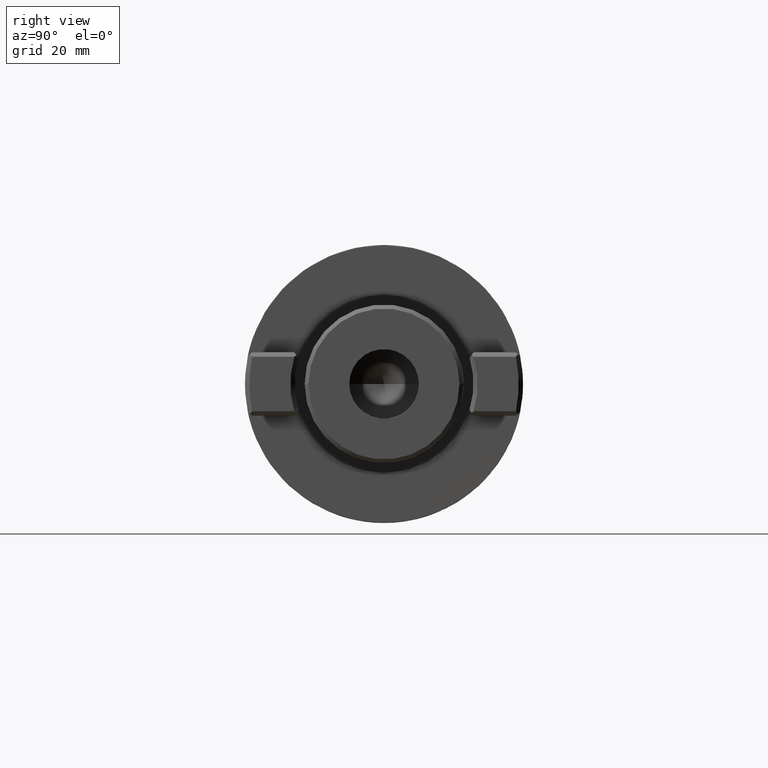
[diagram: clean part render]
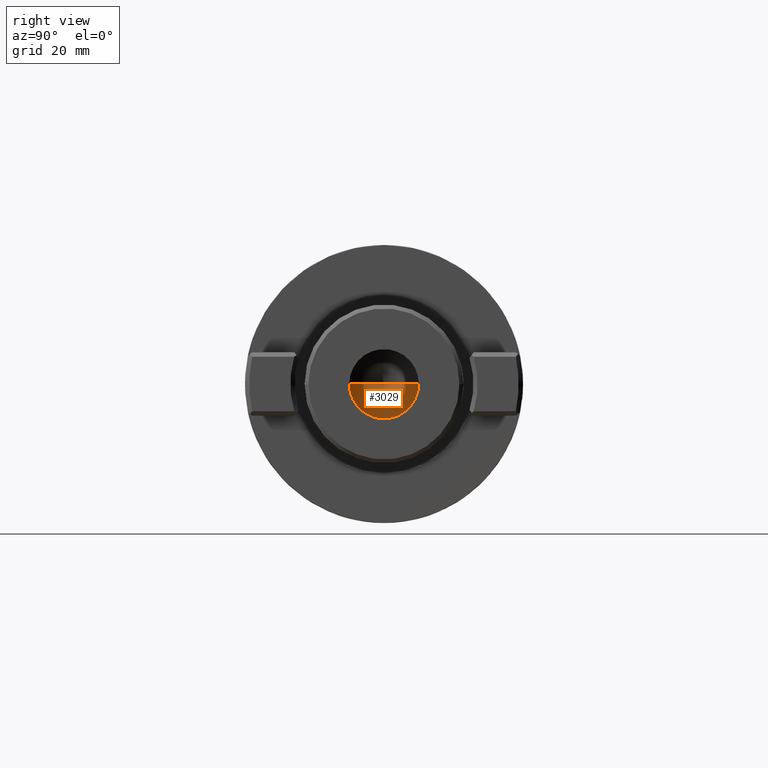
[diagram: same view with one face highlighted and labeled with its STEP entity id]
A machine part, right view. The second image highlights one B-rep face of the part: STEP entity #3029.
In plain terms, the highlighted conical surface has half-angle 59 deg.
Its self-contained STEP definition (entity closure, byte-faithful):
#824=CARTESIAN_POINT('',(4.2E1,0.E0,0.E0));
#825=DIRECTION('',(1.E0,0.E0,0.E0));
#826=DIRECTION('',(0.E0,-1.E0,0.E0));
#827=AXIS2_PLACEMENT_3D('',#824,#825,#826);
#842=DIRECTION('',(5.150380749101E-1,-8.571673007021E-1,0.E0));
#843=VECTOR('',#842,1.020804222563E1);
#844=CARTESIAN_POINT('',(3.674246958351E1,0.E0,0.E0));
#845=LINE('',#844,#843);
#846=DIRECTION('',(5.150380749101E-1,8.571673007021E-1,0.E0));
#847=VECTOR('',#846,1.020804222563E1);
#848=CARTESIAN_POINT('',(3.674246958351E1,0.E0,0.E0));
#849=LINE('',#848,#847);
#2050=CARTESIAN_POINT('',(3.674246958351E1,0.E0,0.E0));
#2051=CARTESIAN_POINT('',(4.2E1,-8.75E0,0.E0));
#2052=VERTEX_POINT('',#2050);
#2053=VERTEX_POINT('',#2051);
#2054=CARTESIAN_POINT('',(4.2E1,8.75E0,0.E0));
#2055=VERTEX_POINT('',#2054);
#3019=CARTESIAN_POINT('',(3.937123479175E1,0.E0,0.E0));
#3020=DIRECTION('',(1.E0,0.E0,0.E0));
#3021=DIRECTION('',(0.E0,-1.E0,0.E0));
#3022=AXIS2_PLACEMENT_3D('',#3019,#3020,#3021);
#3023=CONICAL_SURFACE('',#3022,4.375E0,5.9E1);
#3024=ORIENTED_EDGE('',*,*,#3011,.F.);
#3025=ORIENTED_EDGE('',*,*,#3014,.T.);
#3026=ORIENTED_EDGE('',*,*,#2986,.F.);
#3027=EDGE_LOOP('',(#3024,#3025,#3026));
#3028=FACE_OUTER_BOUND('',#3027,.F.);
#3029=ADVANCED_FACE('',(#3028),#3023,.F.);
#828=CIRCLE('',#827,8.75E0);
#2986=EDGE_CURVE('',#2053,#2055,#828,.T.);
#3011=EDGE_CURVE('',#2052,#2053,#845,.T.);
#3014=EDGE_CURVE('',#2052,#2055,#849,.T.);